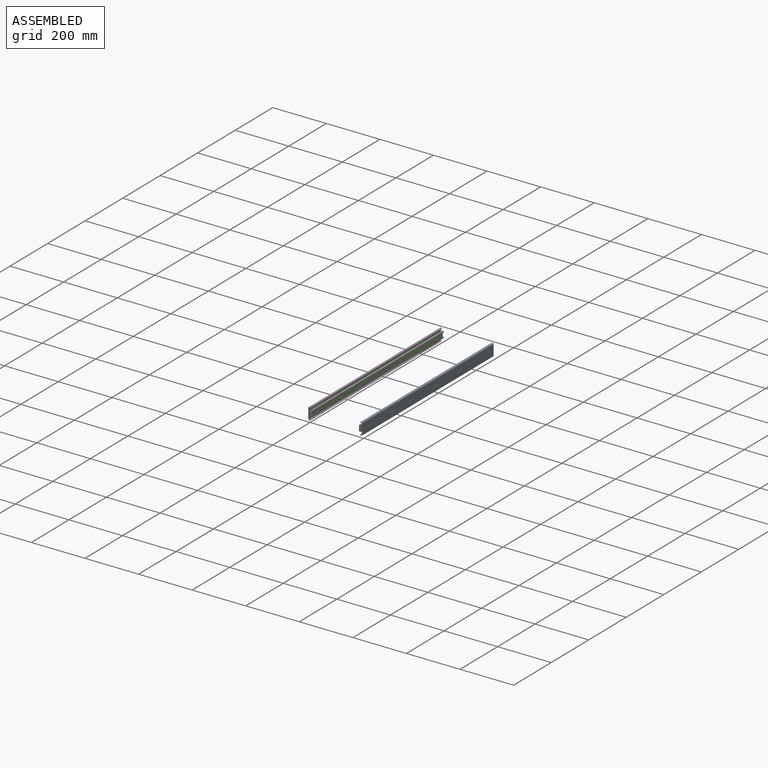
[diagram: assembled view]
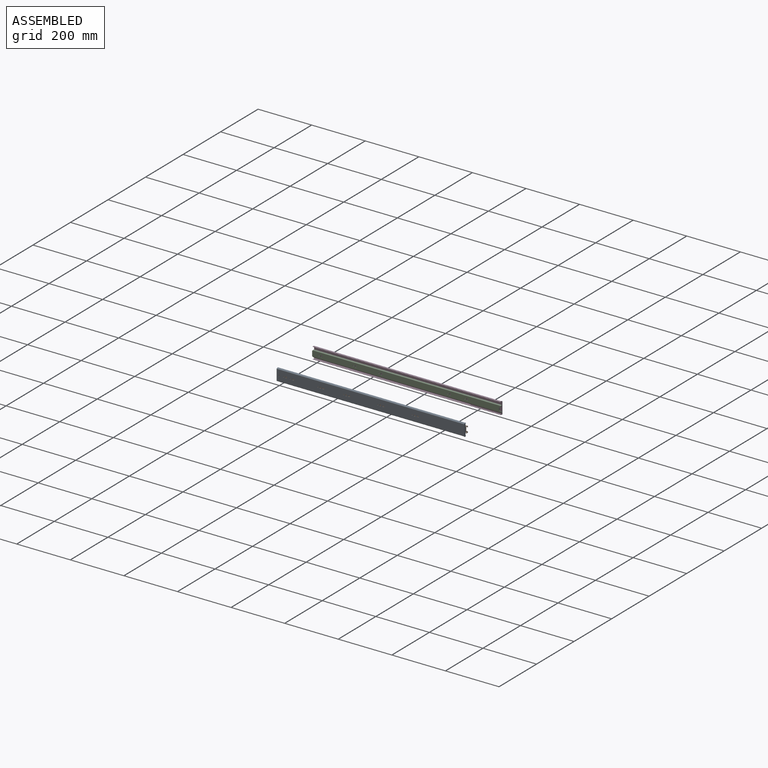
[diagram: assembled view, second angle]
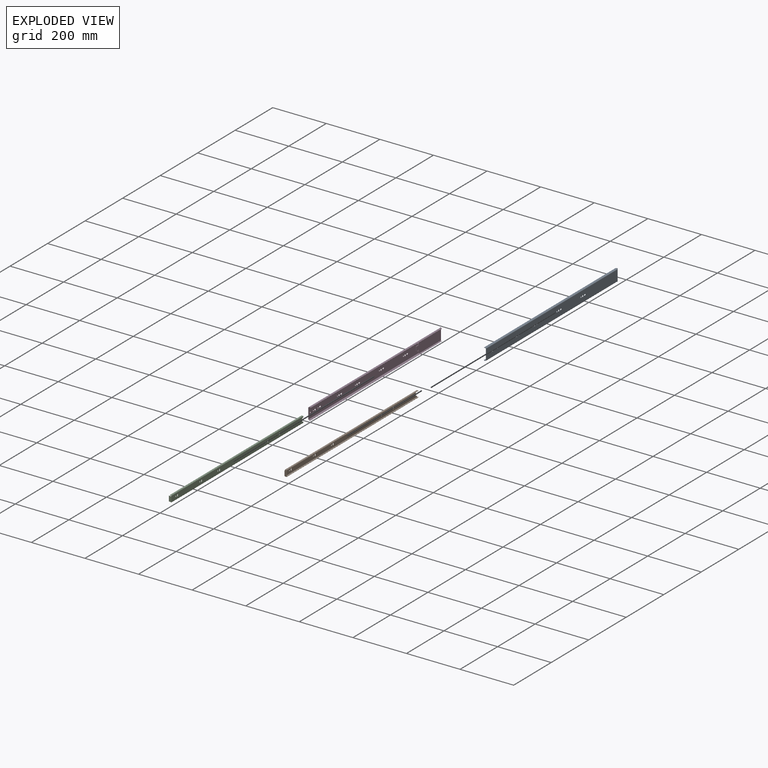
[diagram: exploded view]
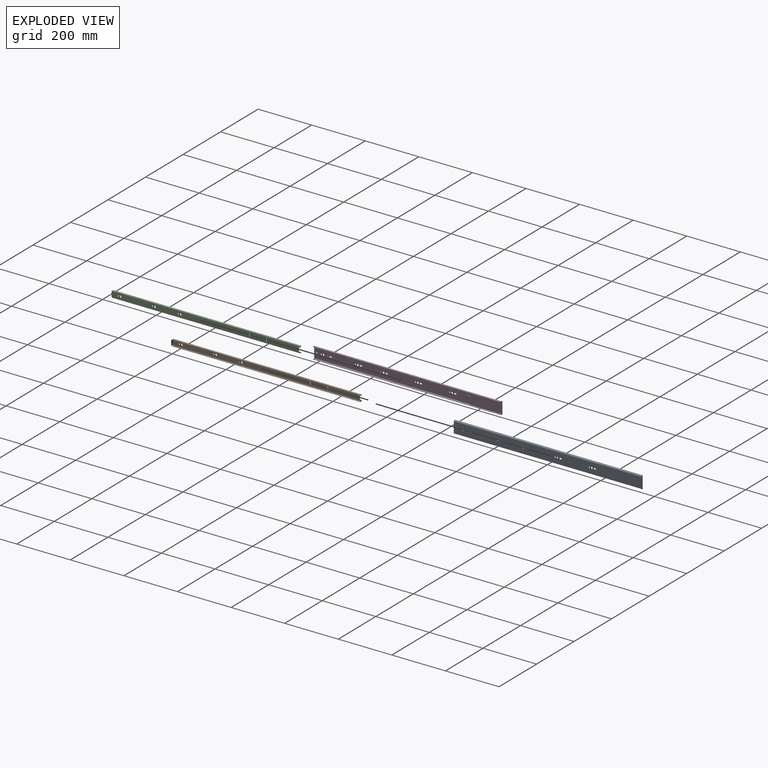
[diagram: exploded view, second angle]
ASSEMBLY  parts=4 mates=2
PART A: 120 faces, bbox 8.8x702.5x45.7 mm
  f0: plane 700x38.83mm, normal (-1,0,0), area 26749.2mm2, adj f1,f2,f5,f6,f72,f73,f74,f75
  f1: cylinder r=1mm len=700mm, axis (0,1,0), area 867.2mm2, adj f0,f5,f6,f10,f12,f67
  f2: cylinder r=1mm len=700mm, axis (0,1,0), area 867.2mm2, adj f0,f5,f6,f12,f15,f118
  f3: plane 5.58x2.54mm, normal (0,1,0), area 7.1mm2, adj f7,f8,f9,f108,f109,f110,f119
  f4: plane 5.58x2.54mm, normal (0,1,0), area 7.1mm2, adj f112,f113,f114,f115,f116,f117,f119
  f5: plane 42.73x1.2mm, normal (0,1,0), area 49.7mm2, adj f0,f1,f2,f12,f104,f105,f106
  f6: plane 45.5x8.78mm, normal (0,-1,0), area 69mm2, adj f0,f1,f2,f7,f8,f9,f10,f104
  f7: plane 700x0.63mm, normal (0.71,0,-0.71), area 627.3mm2, adj f3,f6,f8,f110
  f8: cylinder r=2.44mm len=700mm, axis (0,1,0), area 2680.6mm2, adj f3,f6,f7,f9
  f9: cylinder r=1.19mm len=700mm, axis (0,1,0), area 574mm2, adj f3,f6,f8,f10,f67,f119
  f10: plane 585.38x1.01mm, normal (-0.09,0,-1), area 591.5mm2, adj f1,f6,f9,f67
  f11: cylinder r=1.19mm len=2mm, axis (-1,0,0), area 3.8mm2, adj f12,f13,f71,f119
  f12: plane 130.8x45.7mm, normal (1,0,0), area 4821.1mm2, adj f1,f2,f5,f11,f13,f14,f15,f16
  f13: plane 2x1.28mm, normal (0,0,-1), area 2.6mm2, adj f11,f12,f14,f119
  f14: plane 2x1.48mm, normal (0,-1,0), area 2.5mm2, adj f12,f13,f105,f111,f112,f119
  f15: plane 9.25x2mm, normal (0,-1,0), area 18.1mm2, adj f2,f12,f16,f117,f118,f119
  f16: cylinder r=0.38mm len=2mm, axis (-1,0,0), area 2.3mm2, adj f12,f15,f17,f119
  f17: plane 2x1.81mm, normal (0,1,-0.05), area 3.6mm2, adj f12,f16,f18,f119
  f18: cylinder r=1.52mm len=2.99mm, axis (-1,0,0), area 9.1mm2, adj f12,f17,f19,f119
  f19: plane 2.88x2mm, normal (0,-0.99,-0.16), area 5.8mm2, adj f12,f18,f20,f119
  f20: cylinder r=0.32mm len=2mm, axis (-1,0,0), area 1.9mm2, adj f12,f19,f21,f119
  f21: plane 2x0.95mm, normal (0,0.98,-0.21), area 1.9mm2, adj f12,f20,f22,f119
  f22: plane 2x0.96mm, normal (0,1,0), area 1.9mm2, adj f12,f21,f23,f119
  f23: cylinder r=0.5mm len=2mm, axis (-1,0,0), area 1.3mm2, adj f12,f22,f24,f119
  f24: plane 2x0.52mm, normal (0,1,0), area 1mm2, adj f12,f23,f25,f119
  f25: cylinder r=0.5mm len=2mm, axis (-1,0,0), area 1.6mm2, adj f12,f24,f26,f119
  f26: plane 2x0.64mm, normal (0,0,-1), area 1.3mm2, adj f12,f25,f27,f119
  f27: plane 2.46x2mm, normal (0,-1,0), area 4.9mm2, adj f12,f26,f28,f119
  f28: plane 2x1.07mm, normal (0,-0.98,0.17), area 2.2mm2, adj f12,f27,f29,f119
  f29: cylinder r=1.04mm len=2.06mm, axis (-1,0,0), area 6mm2, adj f12,f28,f30,f119
  f30: plane 2.78x2mm, normal (0,0.97,0.24), area 5.7mm2, adj f12,f29,f31,f119
  f31: cylinder r=0.64mm len=2mm, axis (-1,0,0), area 3.6mm2, adj f12,f30,f32,f119
  f32: plane 2x0.75mm, normal (0,-1,-0.06), area 1.5mm2, adj f12,f31,f33,f119
  f33: plane 2.18x2mm, normal (0,-1,0), area 4.4mm2, adj f12,f32,f34,f119
  f34: cylinder r=0.65mm len=2mm, axis (-1,0,0), area 2.1mm2, adj f12,f33,f35,f119
  f35: plane 2x1.11mm, normal (0,0,1), area 2.2mm2, adj f12,f34,f36,f119
  f36: plane 2.1x2mm, normal (0,-1,0), area 4.2mm2, adj f12,f35,f37,f119
  f37: plane 2x0.5mm, normal (0,0,-1), area 1mm2, adj f12,f36,f38,f119
  f38: plane 2x0.85mm, normal (0,1,0), area 1.7mm2, adj f12,f37,f39,f119
  f39: plane 11.7x2mm, normal (0,0,-1), area 23.4mm2, adj f12,f38,f40,f119
  f40: cylinder r=1.5mm len=2mm, axis (-1,0,0), area 4.7mm2, adj f12,f39,f41,f119
  f41: plane 13.5x2mm, normal (0,-1,0), area 27mm2, adj f12,f40,f42,f119
  f42: cylinder r=1.5mm len=2mm, axis (-1,0,0), area 4.7mm2, adj f12,f41,f43,f119
  f43: plane 11.7x2mm, normal (0,0,1), area 23.4mm2, adj f12,f42,f44,f119
  f44: plane 2x0.85mm, normal (0,1,0), area 1.7mm2, adj f12,f43,f45,f119
  f45: plane 2x0.5mm, normal (0,0,1), area 1mm2, adj f12,f44,f46,f119
  f46: plane 2.1x2mm, normal (0,-1,0), area 4.2mm2, adj f12,f45,f47,f119
  f47: plane 2x1.11mm, normal (0,0,-1), area 2.2mm2, adj f12,f46,f48,f119
  f48: cylinder r=0.65mm len=2mm, axis (-1,0,0), area 2.1mm2, adj f12,f47,f49,f119
  f49: plane 2.18x2mm, normal (0,-1,0), area 4.4mm2, adj f12,f48,f50,f119
  f50: plane 2x0.75mm, normal (0,-1,0.06), area 1.5mm2, adj f12,f49,f51,f119
  f51: cylinder r=0.64mm len=2mm, axis (-1,0,0), area 3.6mm2, adj f12,f50,f52,f119
  f52: plane 2.78x2mm, normal (0,0.97,-0.24), area 5.7mm2, adj f12,f51,f53,f119
  f53: cylinder r=1.04mm len=2.06mm, axis (-1,0,0), area 6mm2, adj f12,f52,f54,f119
  f54: plane 2x1.07mm, normal (0,-0.98,-0.17), area 2.2mm2, adj f12,f53,f55,f119
  f55: plane 2.46x2mm, normal (0,-1,0), area 4.9mm2, adj f12,f54,f56,f119
  f56: plane 2x0.64mm, normal (0,0,1), area 1.3mm2, adj f12,f55,f57,f119
  f57: cylinder r=0.5mm len=2mm, axis (-1,0,0), area 1.6mm2, adj f12,f56,f58,f119
  f58: plane 2x0.52mm, normal (0,1,0), area 1mm2, adj f12,f57,f59,f119
  f59: cylinder r=0.5mm len=2mm, axis (-1,0,0), area 1.3mm2, adj f12,f58,f60,f119
  f60: plane 2x0.96mm, normal (0,1,0), area 1.9mm2, adj f12,f59,f61,f119
  f61: plane 2x0.95mm, normal (0,0.98,0.21), area 1.9mm2, adj f12,f60,f62,f119
  f62: cylinder r=0.32mm len=2mm, axis (-1,0,0), area 1.9mm2, adj f12,f61,f63,f119
  f63: plane 2.88x2mm, normal (0,-0.99,0.16), area 5.8mm2, adj f12,f62,f64,f119
  f64: cylinder r=1.52mm len=2.99mm, axis (-1,0,0), area 9.1mm2, adj f12,f63,f65,f119
  f65: plane 2x1.81mm, normal (0,1,0.05), area 3.6mm2, adj f12,f64,f66,f119
  f66: cylinder r=0.38mm len=2mm, axis (-1,0,0), area 2.3mm2, adj f12,f65,f67,f119
  f67: plane 9.25x2mm, normal (0,-1,0), area 18.1mm2, adj f1,f9,f10,f12,f66,f119
  f68: plane 2x1.48mm, normal (0,-1,0), area 2.5mm2, adj f12,f69,f106,f107,f108,f119
  f69: plane 2x1.28mm, normal (0,0,1), area 2.6mm2, adj f12,f68,f70,f119
  f70: cylinder r=1.19mm len=2mm, axis (-1,0,0), area 3.8mm2, adj f12,f69,f71,f119
  f71: plane 43.3x2mm, normal (0,1,0), area 86.6mm2, adj f11,f12,f70,f119
  f72: cylinder r=2.2mm len=4.4mm, axis (-1,0,0), area 16.5mm2, adj f0,f104
  f73: plane 4x1.19mm, normal (0,0,1), area 4.8mm2, adj f0,f74,f76,f104
  f74: cylinder r=2.2mm len=4.4mm, axis (-1,0,0), area 8.3mm2, adj f0,f73,f75,f104
  f75: plane 4x1.19mm, normal (0,0,-1), area 4.8mm2, adj f0,f74,f76,f104
  f76: cylinder r=2.2mm len=4.4mm, axis (-1,0,0), area 8.3mm2, adj f0,f73,f75,f104
  f77: cylinder r=3.2mm len=6.4mm, axis (-1,0,0), area 24mm2, adj f0,f104
  f78: cylinder r=2.2mm len=4.4mm, axis (-1,0,0), area 16.5mm2, adj f0,f104
  f79: plane 4x1.19mm, normal (0,0,1), area 4.8mm2, adj f0,f80,f82,f104
  f80: cylinder r=2.2mm len=4.4mm, axis (-1,0,0), area 8.3mm2, adj f0,f79,f81,f104
  f81: plane 4x1.19mm, normal (0,0,-1), area 4.8mm2, adj f0,f80,f82,f104
  f82: cylinder r=2.2mm len=4.4mm, axis (-1,0,0), area 8.3mm2, adj f0,f79,f81,f104
  f83: cylinder r=3.2mm len=6.4mm, axis (-1,0,0), area 24mm2, adj f0,f104
  f84: cylinder r=2.2mm len=4.4mm, axis (-1,0,0), area 16.5mm2, adj f0,f104
  f85: plane 4x1.19mm, normal (0,0,1), area 4.8mm2, adj f0,f86,f88,f104
  f86: cylinder r=2.2mm len=4.4mm, axis (-1,0,0), area 8.3mm2, adj f0,f85,f87,f104
  f87: plane 4x1.19mm, normal (0,0,-1), area 4.8mm2, adj f0,f86,f88,f104
  f88: cylinder r=2.2mm len=4.4mm, axis (-1,0,0), area 8.3mm2, adj f0,f85,f87,f104
  f89: cylinder r=3.2mm len=6.4mm, axis (-1,0,0), area 24mm2, adj f0,f104
  f90: plane 4x1.19mm, normal (0,0,1), area 4.8mm2, adj f0,f91,f93,f104
  f91: cylinder r=2.2mm len=4.4mm, axis (-1,0,0), area 8.3mm2, adj f0,f90,f92,f104
  f92: plane 4x1.19mm, normal (0,0,-1), area 4.8mm2, adj f0,f91,f93,f104
  f93: cylinder r=2.2mm len=4.4mm, axis (-1,0,0), area 8.3mm2, adj f0,f90,f92,f104
  f94: cylinder r=2.2mm len=4.4mm, axis (-1,0,0), area 16.5mm2, adj f0,f104
  f95: cylinder r=2.2mm len=4.4mm, axis (-1,0,0), area 16.5mm2, adj f0,f104
  f96: cylinder r=3.2mm len=6.4mm, axis (-1,0,0), area 24mm2, adj f0,f104
  f97: plane 4x1.19mm, normal (0,0,1), area 4.8mm2, adj f0,f98,f100,f104
  f98: cylinder r=2.2mm len=4.4mm, axis (-1,0,0), area 8.3mm2, adj f0,f97,f99,f104
  f99: plane 4x1.19mm, normal (0,0,-1), area 4.8mm2, adj f0,f98,f100,f104
  f100: cylinder r=2.2mm len=4.4mm, axis (-1,0,0), area 8.3mm2, adj f0,f97,f99,f104
  f101: cylinder r=2.2mm len=4.4mm, axis (-1,0,0), area 16.5mm2, adj f0,f104
  f102: cylinder r=3.2mm len=6.4mm, axis (-1,0,0), area 24mm2, adj f0,f104
  f103: cylinder r=2.3mm len=4.6mm, axis (-1,0,0), area 17.3mm2, adj f0,f104
  f104: plane 700x38.83mm, normal (1,0,0), area 26749.2mm2, adj f5,f6,f72,f73,f74,f75,f76,f77
  f105: cylinder r=2.19mm len=700mm, axis (0,1,0), area 2274.6mm2, adj f5,f6,f14,f104,f111
  f106: cylinder r=2.19mm len=700mm, axis (0,1,0), area 2274.6mm2, adj f5,f6,f68,f104,f107
  f107: plane 700x1.01mm, normal (0.09,0,1), area 707.3mm2, adj f6,f68,f106,f108
  f108: cylinder r=3.63mm len=700mm, axis (0,1,0), area 3993.5mm2, adj f3,f6,f68,f107,f109
  f109: plane 700x0.63mm, normal (-0.71,0,0.71), area 627.3mm2, adj f3,f6,f108,f110
  f110: plane 700x0.85mm, normal (-0.71,0,-0.71), area 836.3mm2, adj f3,f6,f7,f109
  f111: plane 700x1.01mm, normal (0.09,0,-1), area 707.3mm2, adj f6,f14,f105,f112
  f112: cylinder r=3.63mm len=700mm, axis (0,1,0), area 3993.5mm2, adj f4,f6,f14,f111,f113
  f113: plane 700x0.63mm, normal (-0.71,0,-0.71), area 627.3mm2, adj f4,f6,f112,f114
  f114: plane 700x0.85mm, normal (-0.71,0,0.71), area 836.3mm2, adj f4,f6,f113,f115
  f115: plane 700x0.63mm, normal (0.71,0,0.71), area 627.3mm2, adj f4,f6,f114,f116
  f116: cylinder r=2.44mm len=700mm, axis (0,1,0), area 2680.6mm2, adj f4,f6,f115,f117
  f117: cylinder r=1.19mm len=700mm, axis (0,1,0), area 574mm2, adj f4,f6,f15,f116,f118,f119
  f118: plane 585.38x1.01mm, normal (-0.09,0,1), area 591.5mm2, adj f2,f6,f15,f117
  f119: plane 130.8x45.7mm, normal (-1,0,0), area 5065.9mm2, adj f3,f4,f9,f11,f13,f14,f15,f16
PART B: 56 faces, bbox 8.3x705x24.3 mm
  f0: cylinder r=2.2mm len=4.4mm, axis (1,0,0), area 9.6mm2, adj f2,f3,f4,f52
  f1: cylinder r=2.2mm len=4.4mm, axis (1,0,0), area 19.3mm2, adj f3,f4
  f2: plane 4x1.39mm, normal (0,1,0), area 5.6mm2, adj f0,f3,f4,f53
  f3: plane 703.64x20.71mm, normal (-1,0,0), area 14247.5mm2, adj f0,f1,f2,f5,f18,f19,f20,f25
  f4: plane 702.04x20.71mm, normal (1,0,0), area 14217.1mm2, adj f0,f1,f2,f11,f12,f18,f19,f27
  f5: cylinder r=1.79mm len=702.04mm, axis (0,1,0), area 2804mm2, adj f3,f6,f18,f19
  f6: cylinder r=2.44mm len=702.04mm, axis (0,1,0), area 2173.2mm2, adj f5,f7,f18,f19
  f7: plane 702.04x0.41mm, normal (-0.57,0,0.82), area 349.5mm2, adj f6,f8,f18,f19
  f8: plane 702.04x1.14mm, normal (0.82,0,0.57), area 978.6mm2, adj f7,f9,f18,f19
  f9: plane 702.04x0.41mm, normal (0.57,0,-0.82), area 349.5mm2, adj f8,f10,f18,f19
  f10: cylinder r=3.83mm len=702.04mm, axis (0,1,0), area 3415.1mm2, adj f9,f11,f18,f19
  f11: cylinder r=0.4mm len=702.04mm, axis (0,1,0), area 623.1mm2, adj f4,f10,f18,f19
  f12: cylinder r=0.4mm len=702.04mm, axis (0,1,0), area 623.1mm2, adj f4,f13,f18,f55
  f13: cylinder r=3.83mm len=702.04mm, axis (0,1,0), area 3415.1mm2, adj f12,f14,f18,f55
  f14: plane 702.04x0.41mm, normal (0.57,0,0.82), area 349.5mm2, adj f13,f15,f18,f55
  f15: plane 702.04x1.14mm, normal (0.82,0,-0.57), area 978.6mm2, adj f14,f16,f18,f55
  f16: plane 702.04x0.41mm, normal (-0.57,0,-0.82), area 349.5mm2, adj f15,f17,f18,f55
  f17: cylinder r=2.44mm len=702.04mm, axis (0,1,0), area 2173.2mm2, adj f16,f18,f54,f55
  f18: plane 24.3x6.99mm, normal (0,-1,0), area 21.8mm2, adj f3,f4,f5,f6,f7,f8,f9,f10
  f19: plane 6.99x4.84mm, normal (0,1,0), area 13.9mm2, adj f3,f4,f5,f6,f7,f8,f9,f10
  f20: cylinder r=1.4mm len=19mm, axis (0,0,1), area 41.8mm2, adj f3,f21,f25,f26
  f21: plane 19x6.9mm, normal (0,-1,0), area 131.1mm2, adj f20,f22,f25,f26
  f22: plane 19x1.4mm, normal (1,0,0), area 26.6mm2, adj f21,f23,f25,f26
  f23: plane 19x6.91mm, normal (0,1,0), area 131.3mm2, adj f22,f24,f25,f26
  f24: plane 19x1.6mm, normal (1,0,0), area 30.4mm2, adj f18,f23,f25,f26
  f25: plane 8.3x3mm, normal (0,0,-1), area 13.4mm2, adj f3,f18,f20,f21,f22,f23,f24
  f26: plane 8.3x3mm, normal (0,0,1), area 13.4mm2, adj f3,f18,f20,f21,f22,f23,f24
  f27: cylinder r=2.2mm len=4.4mm, axis (1,0,0), area 19.3mm2, adj f3,f4
  f28: plane 4x1.39mm, normal (0,-1,0), area 5.6mm2, adj f3,f4,f29,f31
  f29: cylinder r=2.2mm len=4.4mm, axis (1,0,0), area 9.6mm2, adj f3,f4,f28,f30
  f30: plane 4x1.39mm, normal (0,1,0), area 5.6mm2, adj f3,f4,f29,f31
  f31: cylinder r=2.2mm len=4.4mm, axis (1,0,0), area 9.6mm2, adj f3,f4,f28,f30
  f32: plane 4x1.39mm, normal (0,-1,0), area 5.6mm2, adj f3,f4,f33,f35
  f33: cylinder r=2.2mm len=4.4mm, axis (1,0,0), area 9.6mm2, adj f3,f4,f32,f34
  f34: plane 4x1.39mm, normal (0,1,0), area 5.6mm2, adj f3,f4,f33,f35
  f35: cylinder r=2.2mm len=4.4mm, axis (1,0,0), area 9.6mm2, adj f3,f4,f32,f34
  f36: cylinder r=2.2mm len=4.4mm, axis (1,0,0), area 19.3mm2, adj f3,f4
  f37: plane 4x1.39mm, normal (0,-1,0), area 5.6mm2, adj f3,f4,f38,f40
  f38: cylinder r=2.2mm len=4.4mm, axis (1,0,0), area 9.6mm2, adj f3,f4,f37,f39
  f39: plane 4x1.39mm, normal (0,1,0), area 5.6mm2, adj f3,f4,f38,f40
  f40: cylinder r=2.2mm len=4.4mm, axis (1,0,0), area 9.6mm2, adj f3,f4,f37,f39
  f41: cylinder r=2.2mm len=4.4mm, axis (1,0,0), area 19.3mm2, adj f3,f4
  f42: plane 4x1.39mm, normal (0,-1,0), area 5.6mm2, adj f3,f4,f43,f45
  f43: cylinder r=2.2mm len=4.4mm, axis (1,0,0), area 9.6mm2, adj f3,f4,f42,f44
  f44: plane 4x1.39mm, normal (0,1,0), area 5.6mm2, adj f3,f4,f43,f45
  f45: cylinder r=2.2mm len=4.4mm, axis (1,0,0), area 9.6mm2, adj f3,f4,f42,f44
  f46: cylinder r=2.2mm len=4.4mm, axis (1,0,0), area 19.3mm2, adj f3,f4
  f47: plane 6.18x1.39mm, normal (0,0.15,-0.99), area 8.7mm2, adj f3,f4,f19,f48
  f48: cylinder r=1mm len=1.98mm, axis (1,0,0), area 4.1mm2, adj f3,f4,f47,f49
  f49: plane 8.79x1.39mm, normal (0,1,0), area 12.3mm2, adj f3,f4,f48,f50
  f50: cylinder r=1mm len=1.98mm, axis (1,0,0), area 4.1mm2, adj f3,f4,f49,f51
  f51: plane 6.18x1.39mm, normal (0,0.15,0.99), area 8.7mm2, adj f3,f4,f50,f55
  f52: plane 4x1.39mm, normal (0,-1,0), area 5.6mm2, adj f0,f3,f4,f53
  f53: cylinder r=2.2mm len=4.4mm, axis (1,0,0), area 9.6mm2, adj f2,f3,f4,f52
  f54: cylinder r=1.79mm len=702.04mm, axis (0,1,0), area 2804mm2, adj f3,f17,f18,f55
  f55: plane 6.99x4.84mm, normal (0,1,0), area 13.9mm2, adj f3,f4,f12,f13,f14,f15,f16,f17
PART C: 56 faces, bbox 8.3x705x24.3 mm
  f0: plane 4x1.39mm, normal (0,1,0), area 5.6mm2, adj f1,f2,f12,f20
  f1: cylinder r=2.2mm len=4.4mm, axis (-1,0,0), area 9.6mm2, adj f0,f12,f20,f55
  f2: cylinder r=2.2mm len=4.4mm, axis (-1,0,0), area 9.6mm2, adj f0,f12,f20,f55
  f3: plane 6.99x4.84mm, normal (0,1,0), area 13.9mm2, adj f4,f7,f8,f9,f10,f11,f12,f20
  f4: plane 702.04x0.41mm, normal (-0.57,0,-0.82), area 349.5mm2, adj f3,f6,f7,f11
  f5: plane 6.99x4.84mm, normal (0,1,0), area 13.9mm2, adj f12,f13,f14,f15,f16,f17,f18,f19
  f6: plane 24.3x6.99mm, normal (0,-1,0), area 21.8mm2, adj f4,f7,f8,f9,f10,f11,f12,f13
  f7: cylinder r=3.83mm len=702.04mm, axis (0,1,0), area 3415.1mm2, adj f3,f4,f6,f21
  f8: cylinder r=2.44mm len=702.04mm, axis (0,1,0), area 2173.2mm2, adj f3,f6,f9,f10
  f9: cylinder r=1.79mm len=702.04mm, axis (0,1,0), area 2804mm2, adj f3,f6,f8,f12
  f10: plane 702.04x0.41mm, normal (0.57,0,0.82), area 349.5mm2, adj f3,f6,f8,f11
  f11: plane 702.04x1.14mm, normal (-0.82,0,0.57), area 978.6mm2, adj f3,f4,f6,f10
  f12: plane 703.64x20.71mm, normal (1,0,0), area 14247.5mm2, adj f0,f1,f2,f3,f5,f6,f9,f13
  f13: cylinder r=1.79mm len=702.04mm, axis (0,1,0), area 2804mm2, adj f5,f6,f12,f14
  f14: cylinder r=2.44mm len=702.04mm, axis (0,1,0), area 2173.2mm2, adj f5,f6,f13,f15
  f15: plane 702.04x0.41mm, normal (0.57,0,-0.82), area 349.5mm2, adj f5,f6,f14,f16
  f16: plane 702.04x1.14mm, normal (-0.82,0,-0.57), area 978.6mm2, adj f5,f6,f15,f17
  f17: plane 702.04x0.41mm, normal (-0.57,0,0.82), area 349.5mm2, adj f5,f6,f16,f18
  f18: cylinder r=3.83mm len=702.04mm, axis (0,1,0), area 3415.1mm2, adj f5,f6,f17,f19
  f19: cylinder r=0.4mm len=702.04mm, axis (0,1,0), area 623.1mm2, adj f5,f6,f18,f20
  f20: plane 702.04x20.71mm, normal (-1,0,0), area 14217.1mm2, adj f0,f1,f2,f3,f5,f6,f19,f21
  f21: cylinder r=0.4mm len=702.04mm, axis (0,1,0), area 623.1mm2, adj f3,f6,f7,f20
  f22: cylinder r=2.2mm len=4.4mm, axis (-1,0,0), area 19.3mm2, adj f12,f20
  f23: plane 8.3x3mm, normal (0,0,-1), area 13.4mm2, adj f6,f12,f24,f26,f27,f28,f29
  f24: plane 19x1.4mm, normal (-1,0,0), area 26.6mm2, adj f23,f25,f26,f29
  f25: plane 8.3x3mm, normal (0,0,1), area 13.4mm2, adj f6,f12,f24,f26,f27,f28,f29
  f26: plane 19x6.91mm, normal (0,1,0), area 131.3mm2, adj f23,f24,f25,f27
  f27: plane 19x1.6mm, normal (-1,0,0), area 30.4mm2, adj f6,f23,f25,f26
  f28: cylinder r=1.4mm len=19mm, axis (0,0,1), area 41.8mm2, adj f12,f23,f25,f29
  f29: plane 19x6.9mm, normal (0,-1,0), area 131.1mm2, adj f23,f24,f25,f28
  f30: cylinder r=2.2mm len=4.4mm, axis (-1,0,0), area 19.3mm2, adj f12,f20
  f31: plane 4x1.39mm, normal (0,-1,0), area 5.6mm2, adj f12,f20,f32,f34
  f32: cylinder r=2.2mm len=4.4mm, axis (-1,0,0), area 9.6mm2, adj f12,f20,f31,f33
  f33: plane 4x1.39mm, normal (0,1,0), area 5.6mm2, adj f12,f20,f32,f34
  f34: cylinder r=2.2mm len=4.4mm, axis (-1,0,0), area 9.6mm2, adj f12,f20,f31,f33
  f35: plane 4x1.39mm, normal (0,-1,0), area 5.6mm2, adj f12,f20,f36,f38
  f36: cylinder r=2.2mm len=4.4mm, axis (-1,0,0), area 9.6mm2, adj f12,f20,f35,f37
  f37: plane 4x1.39mm, normal (0,1,0), area 5.6mm2, adj f12,f20,f36,f38
  f38: cylinder r=2.2mm len=4.4mm, axis (-1,0,0), area 9.6mm2, adj f12,f20,f35,f37
  f39: cylinder r=2.2mm len=4.4mm, axis (-1,0,0), area 19.3mm2, adj f12,f20
  f40: plane 4x1.39mm, normal (0,-1,0), area 5.6mm2, adj f12,f20,f41,f43
  f41: cylinder r=2.2mm len=4.4mm, axis (-1,0,0), area 9.6mm2, adj f12,f20,f40,f42
  f42: plane 4x1.39mm, normal (0,1,0), area 5.6mm2, adj f12,f20,f41,f43
  f43: cylinder r=2.2mm len=4.4mm, axis (-1,0,0), area 9.6mm2, adj f12,f20,f40,f42
  f44: cylinder r=2.2mm len=4.4mm, axis (-1,0,0), area 19.3mm2, adj f12,f20
  f45: plane 4x1.39mm, normal (0,-1,0), area 5.6mm2, adj f12,f20,f46,f48
  f46: cylinder r=2.2mm len=4.4mm, axis (-1,0,0), area 9.6mm2, adj f12,f20,f45,f47
  f47: plane 4x1.39mm, normal (0,1,0), area 5.6mm2, adj f12,f20,f46,f48
  f48: cylinder r=2.2mm len=4.4mm, axis (-1,0,0), area 9.6mm2, adj f12,f20,f45,f47
  f49: cylinder r=2.2mm len=4.4mm, axis (-1,0,0), area 19.3mm2, adj f12,f20
  f50: cylinder r=1mm len=1.98mm, axis (-1,0,0), area 4.1mm2, adj f12,f20,f51,f53
  f51: plane 8.79x1.39mm, normal (0,1,0), area 12.3mm2, adj f12,f20,f50,f52
  f52: cylinder r=1mm len=1.98mm, axis (-1,0,0), area 4.1mm2, adj f12,f20,f51,f54
  f53: plane 6.18x1.39mm, normal (0,0.15,-0.99), area 8.7mm2, adj f3,f12,f20,f50
  f54: plane 6.18x1.39mm, normal (0,0.15,0.99), area 8.7mm2, adj f5,f12,f20,f52
  f55: plane 4x1.39mm, normal (0,-1,0), area 5.6mm2, adj f1,f2,f12,f20
PART D: 120 faces, bbox 8.8x702.5x45.7 mm
  f0: plane 700x0.63mm, normal (0.71,0,0.71), area 627.3mm2, adj f1,f2,f14,f115
  f1: plane 700x0.85mm, normal (0.71,0,-0.71), area 836.3mm2, adj f0,f6,f14,f115
  f2: cylinder r=3.63mm len=700mm, axis (0,1,0), area 3993.5mm2, adj f0,f14,f53,f115,f119
  f3: cylinder r=1.19mm len=700mm, axis (0,1,0), area 574mm2, adj f4,f5,f14,f49,f54,f115
  f4: plane 585.38x1.01mm, normal (0.09,0,-1), area 591.5mm2, adj f3,f14,f54,f113
  f5: cylinder r=2.44mm len=700mm, axis (0,1,0), area 2680.6mm2, adj f3,f6,f14,f115
  f6: plane 700x0.63mm, normal (-0.71,0,-0.71), area 627.3mm2, adj f1,f5,f14,f115
  f7: cylinder r=2.44mm len=700mm, axis (0,1,0), area 2680.6mm2, adj f8,f13,f14,f109
  f8: plane 700x0.63mm, normal (-0.71,0,0.71), area 627.3mm2, adj f7,f9,f13,f14
  f9: plane 700x0.85mm, normal (0.71,0,0.71), area 836.3mm2, adj f8,f10,f13,f14
  f10: plane 700x0.63mm, normal (0.71,0,-0.71), area 627.3mm2, adj f9,f11,f13,f14
  f11: cylinder r=3.63mm len=700mm, axis (0,1,0), area 3993.5mm2, adj f10,f12,f13,f14,f48
  f12: plane 700x1.01mm, normal (-0.09,0,-1), area 707.3mm2, adj f11,f14,f48,f117
  f13: plane 5.58x2.54mm, normal (0,1,0), area 7.1mm2, adj f7,f8,f9,f10,f11,f49,f109
  f14: plane 45.5x8.78mm, normal (0,-1,0), area 69mm2, adj f0,f1,f2,f3,f4,f5,f6,f7
  f15: cylinder r=2.3mm len=4.6mm, axis (1,0,0), area 17.3mm2, adj f112,f116
  f16: cylinder r=3.2mm len=6.4mm, axis (1,0,0), area 24mm2, adj f112,f116
  f17: cylinder r=2.2mm len=4.4mm, axis (1,0,0), area 16.5mm2, adj f112,f116
  f18: cylinder r=2.2mm len=4.4mm, axis (1,0,0), area 8.3mm2, adj f19,f21,f112,f116
  f19: plane 4x1.19mm, normal (0,0,-1), area 4.8mm2, adj f18,f20,f112,f116
  f20: cylinder r=2.2mm len=4.4mm, axis (1,0,0), area 8.3mm2, adj f19,f21,f112,f116
  f21: plane 4x1.19mm, normal (0,0,1), area 4.8mm2, adj f18,f20,f112,f116
  f22: cylinder r=3.2mm len=6.4mm, axis (1,0,0), area 24mm2, adj f112,f116
  f23: cylinder r=2.2mm len=4.4mm, axis (1,0,0), area 16.5mm2, adj f112,f116
  f24: cylinder r=2.2mm len=4.4mm, axis (1,0,0), area 16.5mm2, adj f112,f116
  f25: cylinder r=2.2mm len=4.4mm, axis (1,0,0), area 8.3mm2, adj f26,f28,f112,f116
  f26: plane 4x1.19mm, normal (0,0,-1), area 4.8mm2, adj f25,f27,f112,f116
  f27: cylinder r=2.2mm len=4.4mm, axis (1,0,0), area 8.3mm2, adj f26,f28,f112,f116
  f28: plane 4x1.19mm, normal (0,0,1), area 4.8mm2, adj f25,f27,f112,f116
  f29: cylinder r=3.2mm len=6.4mm, axis (1,0,0), area 24mm2, adj f112,f116
  f30: cylinder r=2.2mm len=4.4mm, axis (1,0,0), area 8.3mm2, adj f31,f33,f112,f116
  f31: plane 4x1.19mm, normal (0,0,-1), area 4.8mm2, adj f30,f32,f112,f116
  f32: cylinder r=2.2mm len=4.4mm, axis (1,0,0), area 8.3mm2, adj f31,f33,f112,f116
  f33: plane 4x1.19mm, normal (0,0,1), area 4.8mm2, adj f30,f32,f112,f116
  f34: cylinder r=2.2mm len=4.4mm, axis (1,0,0), area 16.5mm2, adj f112,f116
  f35: cylinder r=3.2mm len=6.4mm, axis (1,0,0), area 24mm2, adj f112,f116
  f36: cylinder r=2.2mm len=4.4mm, axis (1,0,0), area 8.3mm2, adj f37,f39,f112,f116
  f37: plane 4x1.19mm, normal (0,0,-1), area 4.8mm2, adj f36,f38,f112,f116
  f38: cylinder r=2.2mm len=4.4mm, axis (1,0,0), area 8.3mm2, adj f37,f39,f112,f116
  f39: plane 4x1.19mm, normal (0,0,1), area 4.8mm2, adj f36,f38,f112,f116
  f40: cylinder r=2.2mm len=4.4mm, axis (1,0,0), area 16.5mm2, adj f112,f116
  f41: cylinder r=3.2mm len=6.4mm, axis (1,0,0), area 24mm2, adj f112,f116
  f42: cylinder r=2.2mm len=4.4mm, axis (1,0,0), area 8.3mm2, adj f43,f45,f112,f116
  f43: plane 4x1.19mm, normal (0,0,-1), area 4.8mm2, adj f42,f44,f112,f116
  f44: cylinder r=2.2mm len=4.4mm, axis (1,0,0), area 8.3mm2, adj f43,f45,f112,f116
  f45: plane 4x1.19mm, normal (0,0,1), area 4.8mm2, adj f42,f44,f112,f116
  f46: cylinder r=2.2mm len=4.4mm, axis (1,0,0), area 16.5mm2, adj f112,f116
  f47: plane 9.25x2mm, normal (0,-1,0), area 18.1mm2, adj f49,f105,f108,f109,f110,f111
  f48: plane 2x1.48mm, normal (0,-1,0), area 2.5mm2, adj f11,f12,f49,f106,f108,f117
  f49: plane 130.8x45.7mm, normal (1,0,0), area 5065.9mm2, adj f3,f13,f47,f48,f50,f51,f52,f53
  f50: plane 43.3x2mm, normal (0,1,0), area 86.6mm2, adj f49,f51,f107,f108
  f51: cylinder r=1.19mm len=2mm, axis (1,0,0), area 3.8mm2, adj f49,f50,f52,f108
  f52: plane 2x1.28mm, normal (0,0,1), area 2.6mm2, adj f49,f51,f53,f108
  f53: plane 2x1.48mm, normal (0,-1,0), area 2.5mm2, adj f2,f49,f52,f108,f118,f119
  f54: plane 9.25x2mm, normal (0,-1,0), area 18.1mm2, adj f3,f4,f49,f55,f108,f113
  f55: cylinder r=0.38mm len=2mm, axis (1,0,0), area 2.3mm2, adj f49,f54,f56,f108
  f56: plane 2x1.81mm, normal (0,1,0.05), area 3.6mm2, adj f49,f55,f57,f108
  f57: cylinder r=1.52mm len=2.99mm, axis (1,0,0), area 9.1mm2, adj f49,f56,f58,f108
  f58: plane 2.88x2mm, normal (0,-0.99,0.16), area 5.8mm2, adj f49,f57,f59,f108
  f59: cylinder r=0.32mm len=2mm, axis (1,0,0), area 1.9mm2, adj f49,f58,f60,f108
  f60: plane 2x0.95mm, normal (0,0.98,0.21), area 1.9mm2, adj f49,f59,f61,f108
  f61: plane 2x0.96mm, normal (0,1,0), area 1.9mm2, adj f49,f60,f62,f108
  f62: cylinder r=0.5mm len=2mm, axis (1,0,0), area 1.3mm2, adj f49,f61,f63,f108
  f63: plane 2x0.52mm, normal (0,1,0), area 1mm2, adj f49,f62,f64,f108
  f64: cylinder r=0.5mm len=2mm, axis (1,0,0), area 1.6mm2, adj f49,f63,f65,f108
  f65: plane 2x0.64mm, normal (0,0,1), area 1.3mm2, adj f49,f64,f66,f108
  f66: plane 2.46x2mm, normal (0,-1,0), area 4.9mm2, adj f49,f65,f67,f108
  f67: plane 2x1.07mm, normal (0,-0.98,-0.17), area 2.2mm2, adj f49,f66,f68,f108
  f68: cylinder r=1.04mm len=2.06mm, axis (1,0,0), area 6mm2, adj f49,f67,f69,f108
  f69: plane 2.78x2mm, normal (0,0.97,-0.24), area 5.7mm2, adj f49,f68,f70,f108
  f70: cylinder r=0.64mm len=2mm, axis (1,0,0), area 3.6mm2, adj f49,f69,f71,f108
  f71: plane 2x0.75mm, normal (0,-1,0.06), area 1.5mm2, adj f49,f70,f72,f108
  f72: plane 2.18x2mm, normal (0,-1,0), area 4.4mm2, adj f49,f71,f73,f108
  f73: cylinder r=0.65mm len=2mm, axis (1,0,0), area 2.1mm2, adj f49,f72,f74,f108
  f74: plane 2x1.11mm, normal (0,0,-1), area 2.2mm2, adj f49,f73,f75,f108
  f75: plane 2.1x2mm, normal (0,-1,0), area 4.2mm2, adj f49,f74,f76,f108
  f76: plane 2x0.5mm, normal (0,0,1), area 1mm2, adj f49,f75,f77,f108
  f77: plane 2x0.85mm, normal (0,1,0), area 1.7mm2, adj f49,f76,f78,f108
  f78: plane 11.7x2mm, normal (0,0,1), area 23.4mm2, adj f49,f77,f79,f108
  f79: cylinder r=1.5mm len=2mm, axis (1,0,0), area 4.7mm2, adj f49,f78,f80,f108
  f80: plane 13.5x2mm, normal (0,-1,0), area 27mm2, adj f49,f79,f81,f108
  f81: cylinder r=1.5mm len=2mm, axis (1,0,0), area 4.7mm2, adj f49,f80,f82,f108
  f82: plane 11.7x2mm, normal (0,0,-1), area 23.4mm2, adj f49,f81,f83,f108
  f83: plane 2x0.85mm, normal (0,1,0), area 1.7mm2, adj f49,f82,f84,f108
  f84: plane 2x0.5mm, normal (0,0,-1), area 1mm2, adj f49,f83,f85,f108
  f85: plane 2.1x2mm, normal (0,-1,0), area 4.2mm2, adj f49,f84,f86,f108
  f86: plane 2x1.11mm, normal (0,0,1), area 2.2mm2, adj f49,f85,f87,f108
  f87: cylinder r=0.65mm len=2mm, axis (1,0,0), area 2.1mm2, adj f49,f86,f88,f108
  f88: plane 2.18x2mm, normal (0,-1,0), area 4.4mm2, adj f49,f87,f89,f108
  f89: plane 2x0.75mm, normal (0,-1,-0.06), area 1.5mm2, adj f49,f88,f90,f108
  f90: cylinder r=0.64mm len=2mm, axis (1,0,0), area 3.6mm2, adj f49,f89,f91,f108
  f91: plane 2.78x2mm, normal (0,0.97,0.24), area 5.7mm2, adj f49,f90,f92,f108
  f92: cylinder r=1.04mm len=2.06mm, axis (1,0,0), area 6mm2, adj f49,f91,f93,f108
  f93: plane 2x1.07mm, normal (0,-0.98,0.17), area 2.2mm2, adj f49,f92,f94,f108
  f94: plane 2.46x2mm, normal (0,-1,0), area 4.9mm2, adj f49,f93,f95,f108
  f95: plane 2x0.64mm, normal (0,0,-1), area 1.3mm2, adj f49,f94,f96,f108
  f96: cylinder r=0.5mm len=2mm, axis (1,0,0), area 1.6mm2, adj f49,f95,f97,f108
  f97: plane 2x0.52mm, normal (0,1,0), area 1mm2, adj f49,f96,f98,f108
  f98: cylinder r=0.5mm len=2mm, axis (1,0,0), area 1.3mm2, adj f49,f97,f99,f108
  f99: plane 2x0.96mm, normal (0,1,0), area 1.9mm2, adj f49,f98,f100,f108
  f100: plane 2x0.95mm, normal (0,0.98,-0.21), area 1.9mm2, adj f49,f99,f101,f108
  f101: cylinder r=0.32mm len=2mm, axis (1,0,0), area 1.9mm2, adj f49,f100,f102,f108
  f102: plane 2.88x2mm, normal (0,-0.99,-0.16), area 5.8mm2, adj f49,f101,f103,f108
  f103: cylinder r=1.52mm len=2.99mm, axis (1,0,0), area 9.1mm2, adj f49,f102,f104,f108
  f104: plane 2x1.81mm, normal (0,1,-0.05), area 3.6mm2, adj f49,f103,f105,f108
  f105: cylinder r=0.38mm len=2mm, axis (1,0,0), area 2.3mm2, adj f47,f49,f104,f108
  f106: plane 2x1.28mm, normal (0,0,-1), area 2.6mm2, adj f48,f49,f107,f108
  f107: cylinder r=1.19mm len=2mm, axis (1,0,0), area 3.8mm2, adj f49,f50,f106,f108
  f108: plane 130.8x45.7mm, normal (-1,0,0), area 4821.1mm2, adj f47,f48,f50,f51,f52,f53,f54,f55
  f109: cylinder r=1.19mm len=700mm, axis (0,1,0), area 574mm2, adj f7,f13,f14,f47,f49,f110
  f110: plane 585.38x1.01mm, normal (0.09,0,1), area 591.5mm2, adj f14,f47,f109,f111
  f111: cylinder r=1mm len=700mm, axis (0,1,0), area 867.2mm2, adj f14,f47,f108,f110,f112,f114
  f112: plane 700x38.83mm, normal (1,0,0), area 26749.2mm2, adj f14,f15,f16,f17,f18,f19,f20,f21
  f113: cylinder r=1mm len=700mm, axis (0,1,0), area 867.2mm2, adj f4,f14,f54,f108,f112,f114
  f114: plane 42.73x1.2mm, normal (0,1,0), area 49.7mm2, adj f108,f111,f112,f113,f116,f117,f118
  f115: plane 5.58x2.54mm, normal (0,1,0), area 7.1mm2, adj f0,f1,f2,f3,f5,f6,f49
  f116: plane 700x38.83mm, normal (-1,0,0), area 26749.2mm2, adj f14,f15,f16,f17,f18,f19,f20,f21
  f117: cylinder r=2.19mm len=700mm, axis (0,1,0), area 2274.6mm2, adj f12,f14,f48,f114,f116
  f118: cylinder r=2.19mm len=700mm, axis (0,1,0), area 2274.6mm2, adj f14,f53,f114,f116,f119
  f119: plane 700x1.01mm, normal (-0.09,0,1), area 707.3mm2, adj f2,f14,f53,f118
PLACE A t=(201,-9.5,0)mm
PLACE B t=(188.5,-6.5,0)mm
PLACE C t=(12.5,-6.5,0)mm
PLACE D t=(0,-9.5,0)mm
MATE slider B.f21 <-> A.f6  axis (0,-1,0) through (196.8,-9.5,0)mm
MATE slider C.f29 <-> D.f14  axis (0,-1,0) through (4.2,-9.5,0)mm
